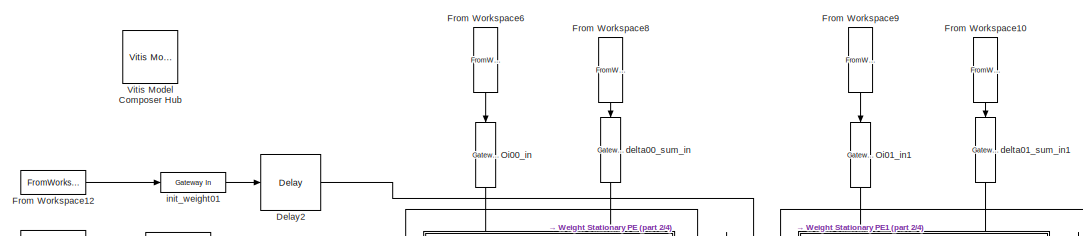
[diagram: root canvas - part 1/4, top left region]
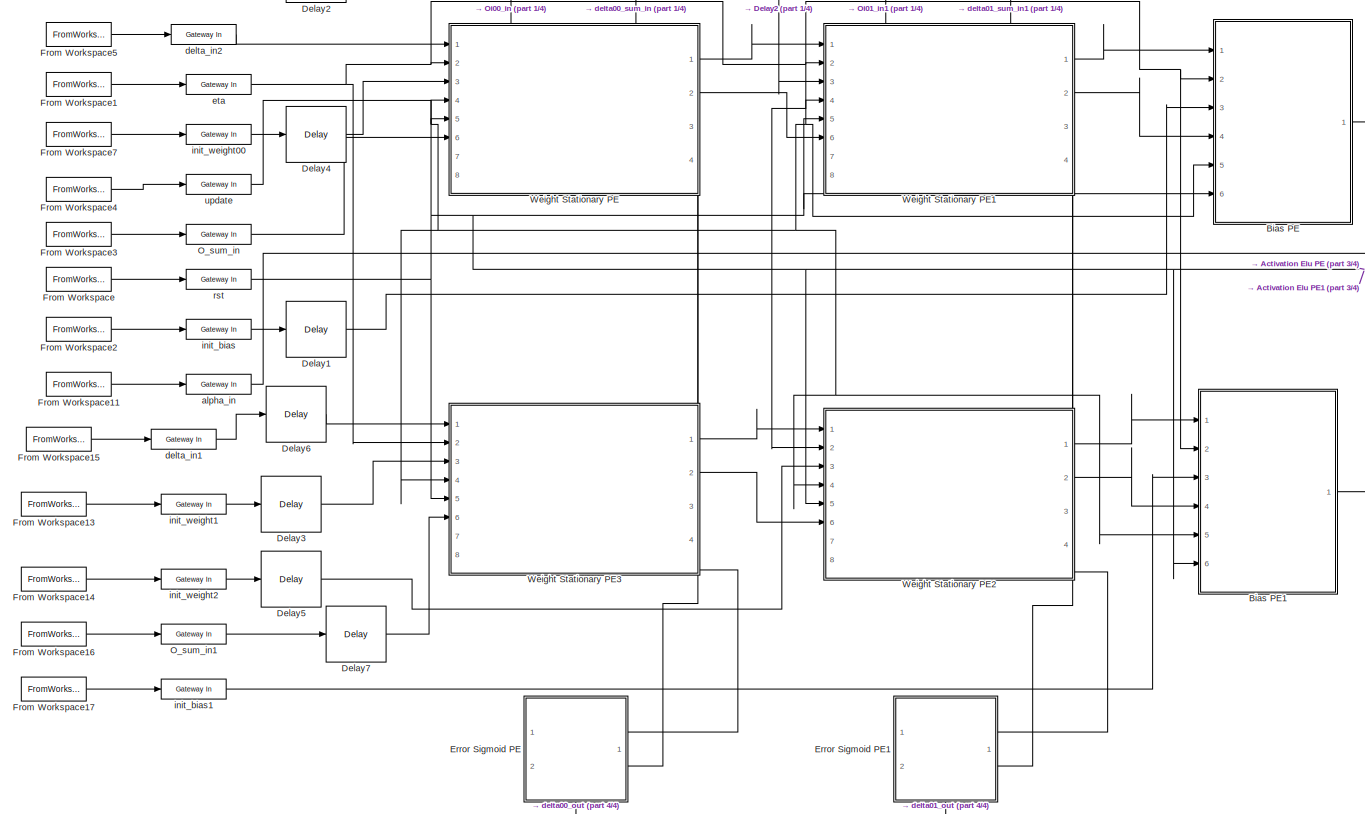
[diagram: root canvas - part 2/4, central region]
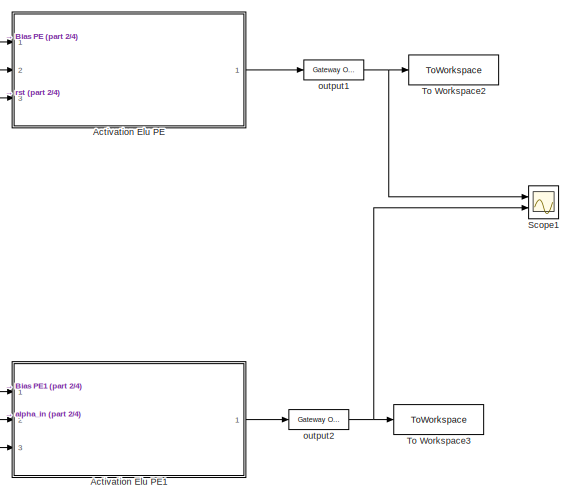
[diagram: root canvas - part 3/4, middle right region]
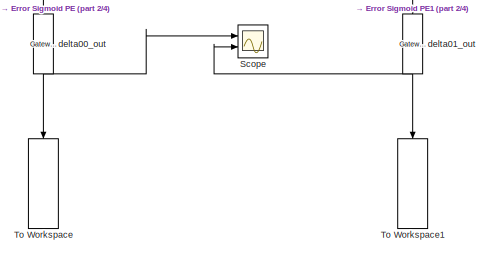
[diagram: root canvas - part 4/4, bottom center region]
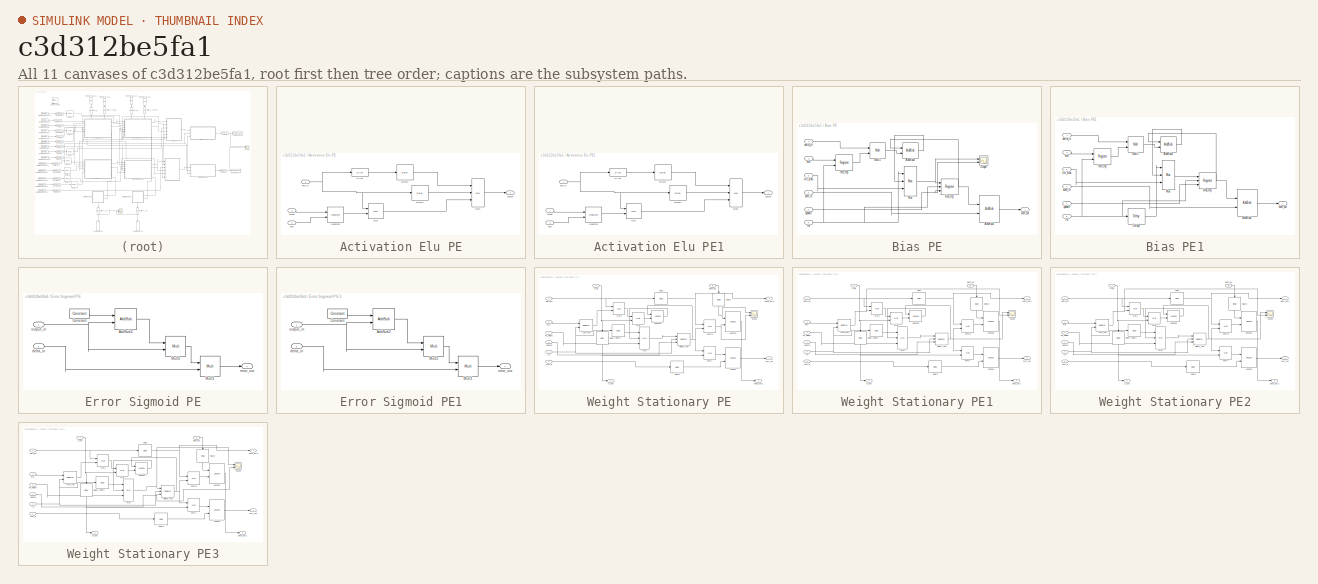
[diagram: thumbnail index - all 11 canvases of the model, root first then tree order]
MODEL slx_c3d312be5fa1
KIND model
CONFIG AbsTol = auto
CONFIG EnableMultiTasking = off
CONFIG FixedStep = auto
CONFIG MaxStep = auto
CONFIG MinStep = auto
CONFIG RelTol = 1e-3
CONFIG SampleTimeConstraint = Unconstrained
CONFIG SolverName = VariableStepAuto
CONFIG StartTime = 0.0
CONFIG StopTime = 15
BLOCK [SubSystem] Activation Elu PE
  Ports = [3, 1]
  RequestExecContextInheritance = off
BLOCK [Reference] Activation Elu PE/Delay1  REF=hdlBasic/Delay
  Ports = [1, 1]
  SourceBlock = hdlBasic/Delay
  SourceType = Delay Block
BLOCK [Reference] Activation Elu PE/Delay4  REF=hdlBasic/Delay
  Ports = [1, 1]
  SourceBlock = hdlBasic/Delay
  SourceType = Delay Block
BLOCK [Reference] Activation Elu PE/Mult  REF=hdlBasic/Mult
  Ports = [2, 1]
  SourceBlock = hdlBasic/Mult
  SourceType = Multiplier Block
BLOCK [Reference] Activation Elu PE/Mux1  REF=hdlBasic/Mux
  Ports = [3, 1]
  SourceBlock = hdlBasic/Mux
  SourceType = Bus Multiplexer Block
BLOCK [Reference] Activation Elu PE/Register  REF=hdlBasic/Register
  Ports = [2, 1]
  SourceBlock = hdlBasic/Register
  SourceType = Register Block
BLOCK [Reference] Activation Elu PE/Slice  REF=hdlBasic/Slice
  Ports = [1, 1]
  SourceBlock = hdlBasic/Slice
  SourceType = Bit Slice Extractor Block
BLOCK [Inport] Activation Elu PE/alpha
  Port = 2
BLOCK [Inport] Activation Elu PE/enb
  Port = 3
BLOCK [Inport] Activation Elu PE/net_in
BLOCK [Outport] Activation Elu PE/output
BLOCK [SubSystem] Activation Elu PE1
  Ports = [3, 1]
  RequestExecContextInheritance = off
BLOCK [Reference] Activation Elu PE1/Delay1  REF=hdlBasic/Delay
  Ports = [1, 1]
  SourceBlock = hdlBasic/Delay
  SourceType = Delay Block
BLOCK [Reference] Activation Elu PE1/Delay4  REF=hdlBasic/Delay
  Ports = [1, 1]
  SourceBlock = hdlBasic/Delay
  SourceType = Delay Block
BLOCK [Reference] Activation Elu PE1/Mult  REF=hdlBasic/Mult
  Ports = [2, 1]
  SourceBlock = hdlBasic/Mult
  SourceType = Multiplier Block
BLOCK [Reference] Activation Elu PE1/Mux1  REF=hdlBasic/Mux
  Ports = [3, 1]
  SourceBlock = hdlBasic/Mux
  SourceType = Bus Multiplexer Block
BLOCK [Reference] Activation Elu PE1/Register  REF=hdlBasic/Register
  Ports = [2, 1]
  SourceBlock = hdlBasic/Register
  SourceType = Register Block
BLOCK [Reference] Activation Elu PE1/Slice  REF=hdlBasic/Slice
  Ports = [1, 1]
  SourceBlock = hdlBasic/Slice
  SourceType = Bit Slice Extractor Block
BLOCK [Inport] Activation Elu PE1/alpha
  Port = 2
BLOCK [Inport] Activation Elu PE1/enb
  Port = 3
BLOCK [Inport] Activation Elu PE1/net_in
BLOCK [Outport] Activation Elu PE1/output
BLOCK [SubSystem] Bias PE
  Ports = [6, 1]
  RequestExecContextInheritance = off
BLOCK [Reference] Bias PE/AddSub1  REF=hdlBasic/AddSub
  Ports = [2, 1]
  SourceBlock = hdlBasic/AddSub
  SourceType = Adder/Subtracter Block
BLOCK [Reference] Bias PE/AddSub2  REF=hdlBasic/AddSub
  Ports = [2, 1]
  SourceBlock = hdlBasic/AddSub
  SourceType = Adder/Subtracter Block
BLOCK [Reference] Bias PE/Mult1  REF=hdlBasic/Mult
  Ports = [2, 1]
  SourceBlock = hdlBasic/Mult
  SourceType = Multiplier Block
BLOCK [Reference] Bias PE/Mux  REF=hdlBasic/Mux
  Ports = [3, 1]
  SourceBlock = hdlBasic/Mux
  SourceType = Bus Multiplexer Block
BLOCK [Scope] Bias PE/Scope
  Floating = off
  NumInputPorts = 2
  Ports = [2]
  ScopeSpecificationString = Simulink.scopes.TimeScopeBlockCfg('CurrentConfiguration', extmgr.ConfigurationSet(extmgr.Configuration('Core','General UI',true),extmgr.Configuration('Core','Source UI',true),extmgr.Configuration('Sources','WiredSimulink',true,'DataLoggingVariableName','ScopeData3'),extmgr.Configuration('Visuals','Time Domain',true,'SerializedDisplays',{struct('MinYLimReal','-1.6875','MaxYLimReal','0.1875','YLabel...<+2051ch>
BLOCK [Reference] Bias PE/bias_reg  REF=hdlBasic/Register
  Ports = [3, 1]
  SourceBlock = hdlBasic/Register
  SourceType = Register Block
BLOCK [Inport] Bias PE/delta_in
BLOCK [Inport] Bias PE/eta
  Port = 2
BLOCK [Inport] Bias PE/init_bias
  Port = 3
BLOCK [Reference] Bias PE/rate_reg  REF=hdlBasic/Register
  Ports = [2, 1]
  SourceBlock = hdlBasic/Register
  SourceType = Register Block
BLOCK [Inport] Bias PE/rst
  Port = 6
BLOCK [Inport] Bias PE/sum_in
  Port = 4
BLOCK [Outport] Bias PE/sum_out
BLOCK [Inport] Bias PE/update
  Port = 5
BLOCK [SubSystem] Bias PE1
  Ports = [6, 1]
  RequestExecContextInheritance = off
BLOCK [Reference] Bias PE1/AddSub1  REF=hdlBasic/AddSub
  Ports = [2, 1]
  SourceBlock = hdlBasic/AddSub
  SourceType = Adder/Subtracter Block
BLOCK [Reference] Bias PE1/AddSub2  REF=hdlBasic/AddSub
  Ports = [2, 1]
  SourceBlock = hdlBasic/AddSub
  SourceType = Adder/Subtracter Block
BLOCK [Reference] Bias PE1/Delay4  REF=hdlBasic/Delay
  Ports = [1, 1]
  SourceBlock = hdlBasic/Delay
  SourceType = Delay Block
BLOCK [Reference] Bias PE1/Mult1  REF=hdlBasic/Mult
  Ports = [2, 1]
  SourceBlock = hdlBasic/Mult
  SourceType = Multiplier Block
BLOCK [Reference] Bias PE1/Mux  REF=hdlBasic/Mux
  Ports = [3, 1]
  SourceBlock = hdlBasic/Mux
  SourceType = Bus Multiplexer Block
BLOCK [Reference] Bias PE1/bias_reg  REF=hdlBasic/Register
  Ports = [3, 1]
  SourceBlock = hdlBasic/Register
  SourceType = Register Block
BLOCK [Inport] Bias PE1/delta_in
BLOCK [Inport] Bias PE1/eta
  Port = 2
BLOCK [Inport] Bias PE1/init_bias
  Port = 3
BLOCK [Reference] Bias PE1/rate_reg  REF=hdlBasic/Register
  Ports = [2, 1]
  SourceBlock = hdlBasic/Register
  SourceType = Register Block
BLOCK [Inport] Bias PE1/rst
  Port = 6
BLOCK [Inport] Bias PE1/sum_in
  Port = 4
BLOCK [Outport] Bias PE1/sum_out
BLOCK [Inport] Bias PE1/update
  Port = 5
BLOCK [Reference] Delay1  REF=hdlBasic/Delay
  Ports = [1, 1]
  SourceBlock = hdlBasic/Delay
  SourceType = Delay Block
BLOCK [Reference] Delay2  REF=hdlBasic/Delay
  Ports = [1, 1]
  SourceBlock = hdlBasic/Delay
  SourceType = Delay Block
BLOCK [Reference] Delay3  REF=hdlBasic/Delay
  Ports = [1, 1]
  SourceBlock = hdlBasic/Delay
  SourceType = Delay Block
BLOCK [Reference] Delay4  REF=hdlBasic/Delay
  Ports = [1, 1]
  SourceBlock = hdlBasic/Delay
  SourceType = Delay Block
BLOCK [Reference] Delay5  REF=hdlBasic/Delay
  Ports = [1, 1]
  SourceBlock = hdlBasic/Delay
  SourceType = Delay Block
BLOCK [Reference] Delay6  REF=hdlBasic/Delay
  Ports = [1, 1]
  SourceBlock = hdlBasic/Delay
  SourceType = Delay Block
BLOCK [Reference] Delay7  REF=hdlBasic/Delay
  Ports = [1, 1]
  SourceBlock = hdlBasic/Delay
  SourceType = Delay Block
BLOCK [SubSystem] Error Sigmoid PE
  PortSchema = {"entries":[{"content":{"sides":[{"content":{"connectorIds":[]},"type":"ConnectorPlacement.EquallySpacedRectSide","uuid":"4b4c7bc9-3645-4c76-a1de-5ab676f1a9ac"},{"content":{"connectorIds":[],"side":"RIGHT"},"type":"ConnectorPlacement.EquallySpacedRectSide","uuid":"d1be90c1-a42c-4064-b554-aa0c88bdcf76"},{"content":{"connectorIds":["In1","In2"],"side":"TOP"},"type":"ConnectorPlacement.EquallySpacedR...<+390ch>
  Ports = [2, 1]
  RequestExecContextInheritance = off
BLOCK [Reference] Error Sigmoid PE/AddSub2  REF=hdlBasic/AddSub
  Ports = [2, 1]
  SourceBlock = hdlBasic/AddSub
  SourceType = Adder/Subtracter Block
BLOCK [Reference] Error Sigmoid PE/Constant  REF=hdlBasic/Constant
  Ports = [0, 1]
  SourceBlock = hdlBasic/Constant
  SourceType = Constant Block Block
BLOCK [Reference] Error Sigmoid PE/Mult1  REF=hdlBasic/Mult
  Ports = [2, 1]
  SourceBlock = hdlBasic/Mult
  SourceType = Multiplier Block
BLOCK [Reference] Error Sigmoid PE/Mult2  REF=hdlBasic/Mult
  Ports = [2, 1]
  SourceBlock = hdlBasic/Mult
  SourceType = Multiplier Block
BLOCK [Inport] Error Sigmoid PE/delta_in
  Port = 2
BLOCK [Outport] Error Sigmoid PE/error_out
BLOCK [Inport] Error Sigmoid PE/output_in
BLOCK [SubSystem] Error Sigmoid PE1
  PortSchema = {"entries":[{"content":{"sides":[{"content":{"connectorIds":[]},"type":"ConnectorPlacement.EquallySpacedRectSide","uuid":"4b4c7bc9-3645-4c76-a1de-5ab676f1a9ac"},{"content":{"connectorIds":[],"side":"RIGHT"},"type":"ConnectorPlacement.EquallySpacedRectSide","uuid":"d1be90c1-a42c-4064-b554-aa0c88bdcf76"},{"content":{"connectorIds":["In1","In2"],"side":"TOP"},"type":"ConnectorPlacement.EquallySpacedR...<+390ch>
  Ports = [2, 1]
  RequestExecContextInheritance = off
BLOCK [Reference] Error Sigmoid PE1/AddSub2  REF=hdlBasic/AddSub
  Ports = [2, 1]
  SourceBlock = hdlBasic/AddSub
  SourceType = Adder/Subtracter Block
BLOCK [Reference] Error Sigmoid PE1/Constant  REF=hdlBasic/Constant
  Ports = [0, 1]
  SourceBlock = hdlBasic/Constant
  SourceType = Constant Block Block
BLOCK [Reference] Error Sigmoid PE1/Mult1  REF=hdlBasic/Mult
  Ports = [2, 1]
  SourceBlock = hdlBasic/Mult
  SourceType = Multiplier Block
BLOCK [Reference] Error Sigmoid PE1/Mult2  REF=hdlBasic/Mult
  Ports = [2, 1]
  SourceBlock = hdlBasic/Mult
  SourceType = Multiplier Block
BLOCK [Inport] Error Sigmoid PE1/delta_in
  Port = 2
BLOCK [Outport] Error Sigmoid PE1/error_out
BLOCK [Inport] Error Sigmoid PE1/output_in
BLOCK [FromWorkspace] From Workspace
  VariableName = rst
BLOCK [FromWorkspace] From Workspace1
  VariableName = eta
BLOCK [FromWorkspace] From Workspace10
  NameLocation = left
  VariableName = delta01
BLOCK [FromWorkspace] From Workspace11
  VariableName = alpha
BLOCK [FromWorkspace] From Workspace12
  VariableName = init_weight01
BLOCK [FromWorkspace] From Workspace13
  VariableName = init_weight10
BLOCK [FromWorkspace] From Workspace14
  VariableName = init_weight11
BLOCK [FromWorkspace] From Workspace15
  VariableName = delta2_1
BLOCK [FromWorkspace] From Workspace16
  VariableName = o_sum1
BLOCK [FromWorkspace] From Workspace17
  VariableName = init_bias_1
BLOCK [FromWorkspace] From Workspace2
  VariableName = init_bias_0
BLOCK [FromWorkspace] From Workspace3
  VariableName = o_sum0
BLOCK [FromWorkspace] From Workspace4
  VariableName = update
BLOCK [FromWorkspace] From Workspace5
  VariableName = delta2_0
BLOCK [FromWorkspace] From Workspace6
  NameLocation = left
  VariableName = oi00
BLOCK [FromWorkspace] From Workspace7
  VariableName = init_weight00
BLOCK [FromWorkspace] From Workspace8
  NameLocation = left
  VariableName = delta00
BLOCK [FromWorkspace] From Workspace9
  NameLocation = left
  VariableName = oi01
BLOCK [Reference] O_sum_in  REF=hdlBasic/Gateway In
  Ports = [1, 1]
  SourceBlock = hdlBasic/Gateway In
  SourceType = Gateway In Block
BLOCK [Reference] O_sum_in1  REF=hdlBasic/Gateway In
  Ports = [1, 1]
  SourceBlock = hdlBasic/Gateway In
  SourceType = Gateway In Block
BLOCK [Reference] Oi00_in  REF=hdlBasic/Gateway In
  NameLocation = left
  Ports = [1, 1]
  SourceBlock = hdlBasic/Gateway In
  SourceType = Gateway In Block
BLOCK [Reference] Oi01_in1  REF=hdlBasic/Gateway In
  NameLocation = left
  Ports = [1, 1]
  SourceBlock = hdlBasic/Gateway In
  SourceType = Gateway In Block
BLOCK [Scope] Scope
  Floating = off
  NumInputPorts = 2
  Ports = [2]
  ScopeSpecificationString = Simulink.scopes.TimeScopeBlockCfg('CurrentConfiguration', extmgr.ConfigurationSet(extmgr.Configuration('Core','General UI',true),extmgr.Configuration('Core','Source UI',true),extmgr.Configuration('Sources','WiredSimulink',true,'DataLoggingVariableName','ScopeData1'),extmgr.Configuration('Visuals','Time Domain',true,'SerializedDisplays',{struct('MinYLimReal','-3.375','MaxYLimReal','0.375','YLabelRe...<+2021ch>
BLOCK [Scope] Scope1
  Floating = off
  NumInputPorts = 2
  Ports = [2]
  ScopeSpecificationString = Simulink.scopes.TimeScopeBlockCfg('CurrentConfiguration', extmgr.ConfigurationSet(extmgr.Configuration('Core','General UI',true),extmgr.Configuration('Core','Source UI',true),extmgr.Configuration('Sources','WiredSimulink',true,'DataLoggingVariableName','ScopeData2'),extmgr.Configuration('Visuals','Time Domain',true,'SerializedDisplays',{struct('MinYLimReal','-0.25','MaxYLimReal','2.25','YLabelReal...<+2009ch>
BLOCK [ToWorkspace] To Workspace
  FixptAsFi = on
  MaxDataPoints = inf
  NameLocation = left
  Ports = [1]
  SampleTime = -1
  SaveFormat = Timeseries
  VariableName = delta00
BLOCK [ToWorkspace] To Workspace1
  FixptAsFi = on
  MaxDataPoints = inf
  NameLocation = left
  Ports = [1]
  SampleTime = -1
  SaveFormat = Timeseries
  VariableName = delta01
BLOCK [ToWorkspace] To Workspace2
  FixptAsFi = on
  MaxDataPoints = inf
  Ports = [1]
  SampleTime = -1
  SaveFormat = Timeseries
  VariableName = output1
BLOCK [ToWorkspace] To Workspace3
  FixptAsFi = on
  MaxDataPoints = inf
  Ports = [1]
  SampleTime = -1
  SaveFormat = Timeseries
  VariableName = output2
BLOCK [Reference] Vitis Model Composer Hub  REF=vmcUtilities/Vitis Model Composer Hub
  Ports = []
  SourceBlock = vmcUtilities/Vitis Model Composer Hub
  SourceType = VMC Hub
  Tag = genX
  UserDataPersistent = on
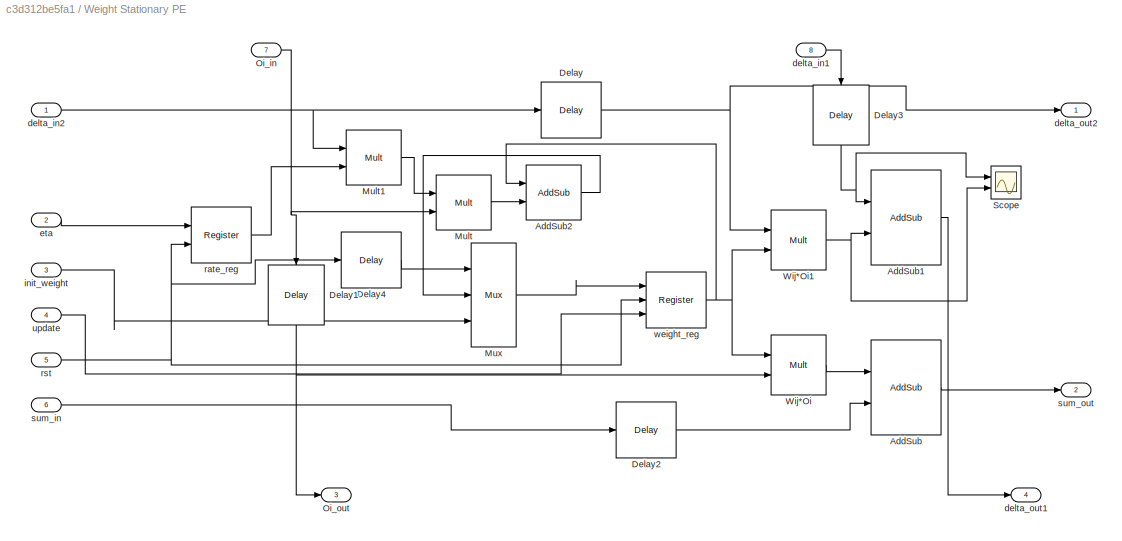
BLOCK [SubSystem] Weight Stationary PE
  PortSchema = {"entries":[{"content":{"sides":[{"content":{"connectorIds":["In1","In2","In3","In4","In5","In6"]},"type":"ConnectorPlacement.EquallySpacedRectSide","uuid":"632a3ded-5b94-406e-b0d8-119737680536"},{"content":{"connectorIds":["Out1","Out2"],"side":"RIGHT"},"type":"ConnectorPlacement.EquallySpacedRectSide","uuid":"c449027c-81bc-4843-8994-fcad26195520"},{"content":{"connectorIds":["In7","In8"],"side":...<+445ch>  <repeated x4 — deduplicated; at blocks: Weight Stationary PE, Weight Stationary PE1, Weight Stationary PE2, Weight Stationary PE3>
  Ports = [8, 4]
  RequestExecContextInheritance = off
BLOCK [Reference] Weight Stationary PE/AddSub  REF=hdlBasic/AddSub
  Ports = [2, 1]
  SourceBlock = hdlBasic/AddSub
  SourceType = Adder/Subtracter Block
BLOCK [Reference] Weight Stationary PE/AddSub1  REF=hdlBasic/AddSub
  Ports = [2, 1]
  SourceBlock = hdlBasic/AddSub
  SourceType = Adder/Subtracter Block
BLOCK [Reference] Weight Stationary PE/AddSub2  REF=hdlBasic/AddSub
  Ports = [2, 1]
  SourceBlock = hdlBasic/AddSub
  SourceType = Adder/Subtracter Block
BLOCK [Reference] Weight Stationary PE/Delay  REF=hdlBasic/Delay
  Ports = [1, 1]
  SourceBlock = hdlBasic/Delay
  SourceType = Delay Block
BLOCK [Reference] Weight Stationary PE/Delay1  REF=hdlBasic/Delay
  NameLocation = left
  Ports = [1, 1]
  SourceBlock = hdlBasic/Delay
  SourceType = Delay Block
BLOCK [Reference] Weight Stationary PE/Delay2  REF=hdlBasic/Delay
  Ports = [1, 1]
  SourceBlock = hdlBasic/Delay
  SourceType = Delay Block
BLOCK [Reference] Weight Stationary PE/Delay3  REF=hdlBasic/Delay
  NameLocation = left
  Ports = [1, 1]
  SourceBlock = hdlBasic/Delay
  SourceType = Delay Block
BLOCK [Reference] Weight Stationary PE/Delay4  REF=hdlBasic/Delay
  Ports = [1, 1]
  SourceBlock = hdlBasic/Delay
  SourceType = Delay Block
BLOCK [Reference] Weight Stationary PE/Mult  REF=hdlBasic/Mult
  Ports = [2, 1]
  SourceBlock = hdlBasic/Mult
  SourceType = Multiplier Block
BLOCK [Reference] Weight Stationary PE/Mult1  REF=hdlBasic/Mult
  Ports = [2, 1]
  SourceBlock = hdlBasic/Mult
  SourceType = Multiplier Block
BLOCK [Reference] Weight Stationary PE/Mux  REF=hdlBasic/Mux
  Ports = [3, 1]
  SourceBlock = hdlBasic/Mux
  SourceType = Bus Multiplexer Block
BLOCK [Inport] Weight Stationary PE/Oi_in
  Port = 7
BLOCK [Outport] Weight Stationary PE/Oi_out
  Port = 3
BLOCK [Scope] Weight Stationary PE/Scope
  Floating = off
  NumInputPorts = 2
  Ports = [2]
  ScopeSpecificationString = Simulink.scopes.TimeScopeBlockCfg('CurrentConfiguration', extmgr.ConfigurationSet(extmgr.Configuration('Core','General UI',true),extmgr.Configuration('Core','Source UI',true),extmgr.Configuration('Sources','WiredSimulink',true),extmgr.Configuration('Visuals','Time Domain',true,'SerializedDisplays',{struct('MinYLimReal','-0.03125','MaxYLimReal','0.28125','YLabelReal','','MinYLimMag','0.00000','MaxY...<+2026ch>
BLOCK [Reference] Weight Stationary PE/Wij*Oi  REF=hdlBasic/Mult
  Ports = [2, 1]
  SourceBlock = hdlBasic/Mult
  SourceType = Multiplier Block
BLOCK [Reference] Weight Stationary PE/Wij*Oi1  REF=hdlBasic/Mult
  Ports = [2, 1]
  SourceBlock = hdlBasic/Mult
  SourceType = Multiplier Block
BLOCK [Inport] Weight Stationary PE/delta_in1
  Port = 8
BLOCK [Inport] Weight Stationary PE/delta_in2
BLOCK [Outport] Weight Stationary PE/delta_out1
  Port = 4
BLOCK [Outport] Weight Stationary PE/delta_out2
BLOCK [Inport] Weight Stationary PE/eta
  Port = 2
BLOCK [Inport] Weight Stationary PE/init_weight
  Port = 3
BLOCK [Reference] Weight Stationary PE/rate_reg  REF=hdlBasic/Register
  Ports = [2, 1]
  SourceBlock = hdlBasic/Register
  SourceType = Register Block
BLOCK [Inport] Weight Stationary PE/rst
  Port = 5
BLOCK [Inport] Weight Stationary PE/sum_in
  Port = 6
BLOCK [Outport] Weight Stationary PE/sum_out
  Port = 2
BLOCK [Inport] Weight Stationary PE/update
  Port = 4
BLOCK [Reference] Weight Stationary PE/weight_reg  REF=hdlBasic/Register
  Ports = [3, 1]
  SourceBlock = hdlBasic/Register
  SourceType = Register Block
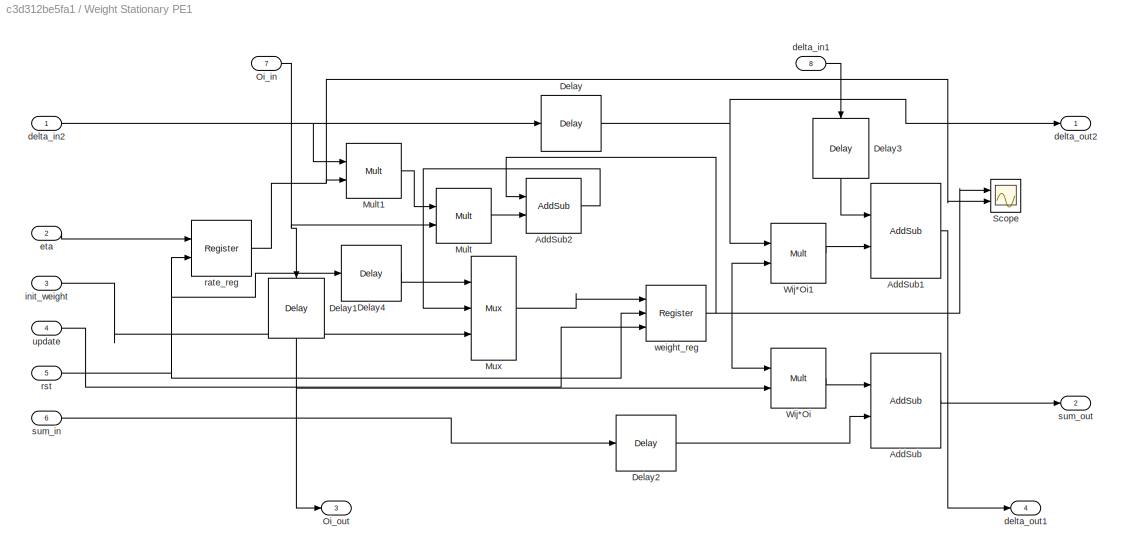
BLOCK [SubSystem] Weight Stationary PE1
  Ports = [8, 4]
  RequestExecContextInheritance = off
BLOCK [Reference] Weight Stationary PE1/AddSub  REF=hdlBasic/AddSub
  Ports = [2, 1]
  SourceBlock = hdlBasic/AddSub
  SourceType = Adder/Subtracter Block
BLOCK [Reference] Weight Stationary PE1/AddSub1  REF=hdlBasic/AddSub
  Ports = [2, 1]
  SourceBlock = hdlBasic/AddSub
  SourceType = Adder/Subtracter Block
BLOCK [Reference] Weight Stationary PE1/AddSub2  REF=hdlBasic/AddSub
  Ports = [2, 1]
  SourceBlock = hdlBasic/AddSub
  SourceType = Adder/Subtracter Block
BLOCK [Reference] Weight Stationary PE1/Delay  REF=hdlBasic/Delay
  Ports = [1, 1]
  SourceBlock = hdlBasic/Delay
  SourceType = Delay Block
BLOCK [Reference] Weight Stationary PE1/Delay1  REF=hdlBasic/Delay
  NameLocation = left
  Ports = [1, 1]
  SourceBlock = hdlBasic/Delay
  SourceType = Delay Block
BLOCK [Reference] Weight Stationary PE1/Delay2  REF=hdlBasic/Delay
  Ports = [1, 1]
  SourceBlock = hdlBasic/Delay
  SourceType = Delay Block
BLOCK [Reference] Weight Stationary PE1/Delay3  REF=hdlBasic/Delay
  NameLocation = left
  Ports = [1, 1]
  SourceBlock = hdlBasic/Delay
  SourceType = Delay Block
BLOCK [Reference] Weight Stationary PE1/Delay4  REF=hdlBasic/Delay
  Ports = [1, 1]
  SourceBlock = hdlBasic/Delay
  SourceType = Delay Block
BLOCK [Reference] Weight Stationary PE1/Mult  REF=hdlBasic/Mult
  Ports = [2, 1]
  SourceBlock = hdlBasic/Mult
  SourceType = Multiplier Block
BLOCK [Reference] Weight Stationary PE1/Mult1  REF=hdlBasic/Mult
  Ports = [2, 1]
  SourceBlock = hdlBasic/Mult
  SourceType = Multiplier Block
BLOCK [Reference] Weight Stationary PE1/Mux  REF=hdlBasic/Mux
  Ports = [3, 1]
  SourceBlock = hdlBasic/Mux
  SourceType = Bus Multiplexer Block
BLOCK [Inport] Weight Stationary PE1/Oi_in
  Port = 7
BLOCK [Outport] Weight Stationary PE1/Oi_out
  Port = 3
BLOCK [Scope] Weight Stationary PE1/Scope
  Floating = off
  NumInputPorts = 2
  Ports = [2]
  ScopeSpecificationString = Simulink.scopes.TimeScopeBlockCfg('CurrentConfiguration', extmgr.ConfigurationSet(extmgr.Configuration('Core','General UI',true),extmgr.Configuration('Core','Source UI',true),extmgr.Configuration('Sources','WiredSimulink',true),extmgr.Configuration('Visuals','Time Domain',true,'SerializedDisplays',{struct('MinYLimReal','-0.0625','MaxYLimReal','0.5625','YLabelReal','','MinYLimMag','0.00000','MaxYLi...<+2026ch>
BLOCK [Reference] Weight Stationary PE1/Wij*Oi  REF=hdlBasic/Mult
  Ports = [2, 1]
  SourceBlock = hdlBasic/Mult
  SourceType = Multiplier Block
BLOCK [Reference] Weight Stationary PE1/Wij*Oi1  REF=hdlBasic/Mult
  Ports = [2, 1]
  SourceBlock = hdlBasic/Mult
  SourceType = Multiplier Block
BLOCK [Inport] Weight Stationary PE1/delta_in1
  Port = 8
BLOCK [Inport] Weight Stationary PE1/delta_in2
BLOCK [Outport] Weight Stationary PE1/delta_out1
  Port = 4
BLOCK [Outport] Weight Stationary PE1/delta_out2
BLOCK [Inport] Weight Stationary PE1/eta
  Port = 2
BLOCK [Inport] Weight Stationary PE1/init_weight
  Port = 3
BLOCK [Reference] Weight Stationary PE1/rate_reg  REF=hdlBasic/Register
  Ports = [2, 1]
  SourceBlock = hdlBasic/Register
  SourceType = Register Block
BLOCK [Inport] Weight Stationary PE1/rst
  Port = 5
BLOCK [Inport] Weight Stationary PE1/sum_in
  Port = 6
BLOCK [Outport] Weight Stationary PE1/sum_out
  Port = 2
BLOCK [Inport] Weight Stationary PE1/update
  Port = 4
BLOCK [Reference] Weight Stationary PE1/weight_reg  REF=hdlBasic/Register
  Ports = [3, 1]
  SourceBlock = hdlBasic/Register
  SourceType = Register Block
BLOCK [SubSystem] Weight Stationary PE2
  Ports = [8, 4]
  RequestExecContextInheritance = off
BLOCK [Reference] Weight Stationary PE2/AddSub  REF=hdlBasic/AddSub
  Ports = [2, 1]
  SourceBlock = hdlBasic/AddSub
  SourceType = Adder/Subtracter Block
BLOCK [Reference] Weight Stationary PE2/AddSub1  REF=hdlBasic/AddSub
  Ports = [2, 1]
  SourceBlock = hdlBasic/AddSub
  SourceType = Adder/Subtracter Block
BLOCK [Reference] Weight Stationary PE2/AddSub2  REF=hdlBasic/AddSub
  Ports = [2, 1]
  SourceBlock = hdlBasic/AddSub
  SourceType = Adder/Subtracter Block
BLOCK [Reference] Weight Stationary PE2/Delay  REF=hdlBasic/Delay
  Ports = [1, 1]
  SourceBlock = hdlBasic/Delay
  SourceType = Delay Block
BLOCK [Reference] Weight Stationary PE2/Delay1  REF=hdlBasic/Delay
  NameLocation = left
  Ports = [1, 1]
  SourceBlock = hdlBasic/Delay
  SourceType = Delay Block
BLOCK [Reference] Weight Stationary PE2/Delay2  REF=hdlBasic/Delay
  Ports = [1, 1]
  SourceBlock = hdlBasic/Delay
  SourceType = Delay Block
BLOCK [Reference] Weight Stationary PE2/Delay3  REF=hdlBasic/Delay
  NameLocation = left
  Ports = [1, 1]
  SourceBlock = hdlBasic/Delay
  SourceType = Delay Block
BLOCK [Reference] Weight Stationary PE2/Delay4  REF=hdlBasic/Delay
  Ports = [1, 1]
  SourceBlock = hdlBasic/Delay
  SourceType = Delay Block
BLOCK [Reference] Weight Stationary PE2/Mult  REF=hdlBasic/Mult
  Ports = [2, 1]
  SourceBlock = hdlBasic/Mult
  SourceType = Multiplier Block
BLOCK [Reference] Weight Stationary PE2/Mult1  REF=hdlBasic/Mult
  Ports = [2, 1]
  SourceBlock = hdlBasic/Mult
  SourceType = Multiplier Block
BLOCK [Reference] Weight Stationary PE2/Mux  REF=hdlBasic/Mux
  Ports = [3, 1]
  SourceBlock = hdlBasic/Mux
  SourceType = Bus Multiplexer Block
BLOCK [Inport] Weight Stationary PE2/Oi_in
  Port = 7
BLOCK [Outport] Weight Stationary PE2/Oi_out
  Port = 3
BLOCK [Scope] Weight Stationary PE2/Scope
  Floating = off
  NumInputPorts = 2
  Ports = [2]
  ScopeSpecificationString = Simulink.scopes.TimeScopeBlockCfg('CurrentConfiguration', extmgr.ConfigurationSet(extmgr.Configuration('Core','General UI',true),extmgr.Configuration('Core','Source UI',true),extmgr.Configuration('Sources','WiredSimulink',true),extmgr.Configuration('Visuals','Time Domain',true,'SerializedDisplays',{struct('MinYLimReal','-10.25','MaxYLimReal','2.25','YLabelReal','','MinYLimMag','0.00000','MaxYLimMa...<+2019ch>
BLOCK [Reference] Weight Stationary PE2/Wij*Oi  REF=hdlBasic/Mult
  Ports = [2, 1]
  SourceBlock = hdlBasic/Mult
  SourceType = Multiplier Block
BLOCK [Reference] Weight Stationary PE2/Wij*Oi1  REF=hdlBasic/Mult
  Ports = [2, 1]
  SourceBlock = hdlBasic/Mult
  SourceType = Multiplier Block
BLOCK [Inport] Weight Stationary PE2/delta_in1
  Port = 8
BLOCK [Inport] Weight Stationary PE2/delta_in2
BLOCK [Outport] Weight Stationary PE2/delta_out1
  Port = 4
BLOCK [Outport] Weight Stationary PE2/delta_out2
BLOCK [Inport] Weight Stationary PE2/eta
  Port = 2
BLOCK [Inport] Weight Stationary PE2/init_weight
  Port = 3
BLOCK [Reference] Weight Stationary PE2/rate_reg  REF=hdlBasic/Register
  Ports = [2, 1]
  SourceBlock = hdlBasic/Register
  SourceType = Register Block
BLOCK [Inport] Weight Stationary PE2/rst
  Port = 5
BLOCK [Inport] Weight Stationary PE2/sum_in
  Port = 6
BLOCK [Outport] Weight Stationary PE2/sum_out
  Port = 2
BLOCK [Inport] Weight Stationary PE2/update
  Port = 4
BLOCK [Reference] Weight Stationary PE2/weight_reg  REF=hdlBasic/Register
  Ports = [3, 1]
  SourceBlock = hdlBasic/Register
  SourceType = Register Block
BLOCK [SubSystem] Weight Stationary PE3
  Ports = [8, 4]
  RequestExecContextInheritance = off
BLOCK [Reference] Weight Stationary PE3/AddSub  REF=hdlBasic/AddSub
  Ports = [2, 1]
  SourceBlock = hdlBasic/AddSub
  SourceType = Adder/Subtracter Block
BLOCK [Reference] Weight Stationary PE3/AddSub1  REF=hdlBasic/AddSub
  Ports = [2, 1]
  SourceBlock = hdlBasic/AddSub
  SourceType = Adder/Subtracter Block
BLOCK [Reference] Weight Stationary PE3/AddSub2  REF=hdlBasic/AddSub
  Ports = [2, 1]
  SourceBlock = hdlBasic/AddSub
  SourceType = Adder/Subtracter Block
BLOCK [Reference] Weight Stationary PE3/Delay  REF=hdlBasic/Delay
  Ports = [1, 1]
  SourceBlock = hdlBasic/Delay
  SourceType = Delay Block
BLOCK [Reference] Weight Stationary PE3/Delay1  REF=hdlBasic/Delay
  NameLocation = left
  Ports = [1, 1]
  SourceBlock = hdlBasic/Delay
  SourceType = Delay Block
BLOCK [Reference] Weight Stationary PE3/Delay2  REF=hdlBasic/Delay
  Ports = [1, 1]
  SourceBlock = hdlBasic/Delay
  SourceType = Delay Block
BLOCK [Reference] Weight Stationary PE3/Delay3  REF=hdlBasic/Delay
  NameLocation = left
  Ports = [1, 1]
  SourceBlock = hdlBasic/Delay
  SourceType = Delay Block
BLOCK [Reference] Weight Stationary PE3/Delay4  REF=hdlBasic/Delay
  Ports = [1, 1]
  SourceBlock = hdlBasic/Delay
  SourceType = Delay Block
BLOCK [Reference] Weight Stationary PE3/Mult  REF=hdlBasic/Mult
  Ports = [2, 1]
  SourceBlock = hdlBasic/Mult
  SourceType = Multiplier Block
BLOCK [Reference] Weight Stationary PE3/Mult1  REF=hdlBasic/Mult
  Ports = [2, 1]
  SourceBlock = hdlBasic/Mult
  SourceType = Multiplier Block
BLOCK [Reference] Weight Stationary PE3/Mux  REF=hdlBasic/Mux
  Ports = [3, 1]
  SourceBlock = hdlBasic/Mux
  SourceType = Bus Multiplexer Block
BLOCK [Inport] Weight Stationary PE3/Oi_in
  Port = 7
BLOCK [Outport] Weight Stationary PE3/Oi_out
  Port = 3
BLOCK [Scope] Weight Stationary PE3/Scope
  Floating = off
  NumInputPorts = 2
  Ports = [2]
  ScopeSpecificationString = Simulink.scopes.TimeScopeBlockCfg('CurrentConfiguration', extmgr.ConfigurationSet(extmgr.Configuration('Core','General UI',true),extmgr.Configuration('Core','Source UI',true),extmgr.Configuration('Sources','WiredSimulink',true),extmgr.Configuration('Visuals','Time Domain',true,'SerializedDisplays',{struct('MinYLimReal','-3.125','MaxYLimReal','0.625','YLabelReal','','MinYLimMag','0.00000','MaxYLimM...<+2011ch>
BLOCK [Reference] Weight Stationary PE3/Wij*Oi  REF=hdlBasic/Mult
  Ports = [2, 1]
  SourceBlock = hdlBasic/Mult
  SourceType = Multiplier Block
BLOCK [Reference] Weight Stationary PE3/Wij*Oi1  REF=hdlBasic/Mult
  Ports = [2, 1]
  SourceBlock = hdlBasic/Mult
  SourceType = Multiplier Block
BLOCK [Inport] Weight Stationary PE3/delta_in1
  Port = 8
BLOCK [Inport] Weight Stationary PE3/delta_in2
BLOCK [Outport] Weight Stationary PE3/delta_out1
  Port = 4
BLOCK [Outport] Weight Stationary PE3/delta_out2
BLOCK [Inport] Weight Stationary PE3/eta
  Port = 2
BLOCK [Inport] Weight Stationary PE3/init_weight
  Port = 3
BLOCK [Reference] Weight Stationary PE3/rate_reg  REF=hdlBasic/Register
  Ports = [2, 1]
  SourceBlock = hdlBasic/Register
  SourceType = Register Block
BLOCK [Inport] Weight Stationary PE3/rst
  Port = 5
BLOCK [Inport] Weight Stationary PE3/sum_in
  Port = 6
BLOCK [Outport] Weight Stationary PE3/sum_out
  Port = 2
BLOCK [Inport] Weight Stationary PE3/update
  Port = 4
BLOCK [Reference] Weight Stationary PE3/weight_reg  REF=hdlBasic/Register
  Ports = [3, 1]
  SourceBlock = hdlBasic/Register
  SourceType = Register Block
BLOCK [Reference] alpha_in  REF=hdlBasic/Gateway In
  Ports = [1, 1]
  SourceBlock = hdlBasic/Gateway In
  SourceType = Gateway In Block
BLOCK [Reference] delta00_out  REF=hdlBasic/Gateway Out
  NameLocation = left
  Ports = [1, 1]
  SourceBlock = hdlBasic/Gateway Out
  SourceType = Gateway Out Block
BLOCK [Reference] delta00_sum_in  REF=hdlBasic/Gateway In
  NameLocation = left
  Ports = [1, 1]
  SourceBlock = hdlBasic/Gateway In
  SourceType = Gateway In Block
BLOCK [Reference] delta01_out  REF=hdlBasic/Gateway Out
  NameLocation = left
  Ports = [1, 1]
  SourceBlock = hdlBasic/Gateway Out
  SourceType = Gateway Out Block
BLOCK [Reference] delta01_sum_in1  REF=hdlBasic/Gateway In
  NameLocation = left
  Ports = [1, 1]
  SourceBlock = hdlBasic/Gateway In
  SourceType = Gateway In Block
BLOCK [Reference] delta_in1  REF=hdlBasic/Gateway In
  Ports = [1, 1]
  SourceBlock = hdlBasic/Gateway In
  SourceType = Gateway In Block
BLOCK [Reference] delta_in2  REF=hdlBasic/Gateway In
  Ports = [1, 1]
  SourceBlock = hdlBasic/Gateway In
  SourceType = Gateway In Block
BLOCK [Reference] eta  REF=hdlBasic/Gateway In
  Ports = [1, 1]
  SourceBlock = hdlBasic/Gateway In
  SourceType = Gateway In Block
BLOCK [Reference] init_bias  REF=hdlBasic/Gateway In
  Ports = [1, 1]
  SourceBlock = hdlBasic/Gateway In
  SourceType = Gateway In Block
BLOCK [Reference] init_bias1  REF=hdlBasic/Gateway In
  Ports = [1, 1]
  SourceBlock = hdlBasic/Gateway In
  SourceType = Gateway In Block
BLOCK [Reference] init_weight00  REF=hdlBasic/Gateway In
  Ports = [1, 1]
  SourceBlock = hdlBasic/Gateway In
  SourceType = Gateway In Block
BLOCK [Reference] init_weight01  REF=hdlBasic/Gateway In
  Ports = [1, 1]
  SourceBlock = hdlBasic/Gateway In
  SourceType = Gateway In Block
BLOCK [Reference] init_weight1  REF=hdlBasic/Gateway In
  Ports = [1, 1]
  SourceBlock = hdlBasic/Gateway In
  SourceType = Gateway In Block
BLOCK [Reference] init_weight2  REF=hdlBasic/Gateway In
  Ports = [1, 1]
  SourceBlock = hdlBasic/Gateway In
  SourceType = Gateway In Block
BLOCK [Reference] output1  REF=hdlBasic/Gateway Out
  Ports = [1, 1]
  SourceBlock = hdlBasic/Gateway Out
  SourceType = Gateway Out Block
BLOCK [Reference] output2  REF=hdlBasic/Gateway Out
  Ports = [1, 1]
  SourceBlock = hdlBasic/Gateway Out
  SourceType = Gateway Out Block
BLOCK [Reference] rst  REF=hdlBasic/Gateway In
  Ports = [1, 1]
  SourceBlock = hdlBasic/Gateway In
  SourceType = Gateway In Block
BLOCK [Reference] update  REF=hdlBasic/Gateway In
  Ports = [1, 1]
  SourceBlock = hdlBasic/Gateway In
  SourceType = Gateway In Block
LINE Activation Elu PE/Delay1:1 -> Activation Elu PE/Mux1:1
LINE Activation Elu PE/Delay4:1 -> Activation Elu PE/Mux1:2
LINE Activation Elu PE/Mult:1 -> Activation Elu PE/Mux1:3
LINE Activation Elu PE/Mux1:1 -> Activation Elu PE/output:1
LINE Activation Elu PE/Register:1 -> Activation Elu PE/Mult:2
LINE Activation Elu PE/Slice:1 -> Activation Elu PE/Delay1:1
LINE Activation Elu PE/alpha:1 -> Activation Elu PE/Register:1
LINE Activation Elu PE/enb:1 -> Activation Elu PE/Register:2
NET Activation Elu PE/net_in:1 -> Activation Elu PE/Delay4:1, Activation Elu PE/Mult:1, Activation Elu PE/Slice:1
LINE Activation Elu PE1/Delay1:1 -> Activation Elu PE1/Mux1:1
LINE Activation Elu PE1/Delay4:1 -> Activation Elu PE1/Mux1:2
LINE Activation Elu PE1/Mult:1 -> Activation Elu PE1/Mux1:3
LINE Activation Elu PE1/Mux1:1 -> Activation Elu PE1/output:1
LINE Activation Elu PE1/Register:1 -> Activation Elu PE1/Mult:2
LINE Activation Elu PE1/Slice:1 -> Activation Elu PE1/Delay1:1
LINE Activation Elu PE1/alpha:1 -> Activation Elu PE1/Register:1
LINE Activation Elu PE1/enb:1 -> Activation Elu PE1/Register:2
NET Activation Elu PE1/net_in:1 -> Activation Elu PE1/Delay4:1, Activation Elu PE1/Mult:1, Activation Elu PE1/Slice:1
LINE Activation Elu PE1:1 -> output2:1
LINE Activation Elu PE:1 -> output1:1
LINE Bias PE/AddSub1:1 -> Bias PE/sum_out:1
LINE Bias PE/AddSub2:1 -> Bias PE/Mux:2
LINE Bias PE/Mult1:1 -> Bias PE/AddSub2:2
NET Bias PE/Mux:1 -> Bias PE/Scope:1, Bias PE/bias_reg:1
NET Bias PE/bias_reg:1 -> Bias PE/AddSub1:1, Bias PE/AddSub2:1
LINE Bias PE/delta_in:1 -> Bias PE/Mult1:1
LINE Bias PE/eta:1 -> Bias PE/rate_reg:1
LINE Bias PE/init_bias:1 -> Bias PE/Mux:3
LINE Bias PE/rate_reg:1 -> Bias PE/Mult1:2
NET Bias PE/rst:1 -> Bias PE/Mux:1, Bias PE/bias_reg:2, Bias PE/rate_reg:2
LINE Bias PE/sum_in:1 -> Bias PE/AddSub1:2
NET Bias PE/update:1 -> Bias PE/Scope:2, Bias PE/bias_reg:3
LINE Bias PE1/AddSub1:1 -> Bias PE1/sum_out:1
LINE Bias PE1/AddSub2:1 -> Bias PE1/Mux:2
LINE Bias PE1/Delay4:1 -> Bias PE1/Mux:1
LINE Bias PE1/Mult1:1 -> Bias PE1/AddSub2:2
LINE Bias PE1/Mux:1 -> Bias PE1/bias_reg:1
NET Bias PE1/bias_reg:1 -> Bias PE1/AddSub1:1, Bias PE1/AddSub2:1
LINE Bias PE1/delta_in:1 -> Bias PE1/Mult1:1
LINE Bias PE1/eta:1 -> Bias PE1/rate_reg:1
LINE Bias PE1/init_bias:1 -> Bias PE1/Mux:3
LINE Bias PE1/rate_reg:1 -> Bias PE1/Mult1:2
NET Bias PE1/rst:1 -> Bias PE1/Delay4:1, Bias PE1/bias_reg:2, Bias PE1/rate_reg:2
LINE Bias PE1/sum_in:1 -> Bias PE1/AddSub1:2
LINE Bias PE1/update:1 -> Bias PE1/bias_reg:3
LINE Bias PE1:1 -> Activation Elu PE1:1
LINE Bias PE:1 -> Activation Elu PE:1
LINE Delay1:1 -> Bias PE:3
LINE Delay2:1 -> Weight Stationary PE1:3
LINE Delay3:1 -> Weight Stationary PE3:3
LINE Delay4:1 -> Weight Stationary PE:3
LINE Delay5:1 -> Weight Stationary PE2:3
LINE Delay6:1 -> Weight Stationary PE3:1
LINE Delay7:1 -> Weight Stationary PE3:6
LINE Error Sigmoid PE/AddSub2:1 -> Error Sigmoid PE/Mult2:1
LINE Error Sigmoid PE/Constant:1 -> Error Sigmoid PE/AddSub2:1
LINE Error Sigmoid PE/Mult1:1 -> Error Sigmoid PE/error_out:1
LINE Error Sigmoid PE/Mult2:1 -> Error Sigmoid PE/Mult1:1
LINE Error Sigmoid PE/delta_in:1 -> Error Sigmoid PE/Mult1:2
NET Error Sigmoid PE/output_in:1 -> Error Sigmoid PE/AddSub2:2, Error Sigmoid PE/Mult2:2
LINE Error Sigmoid PE1/AddSub2:1 -> Error Sigmoid PE1/Mult2:1
LINE Error Sigmoid PE1/Constant:1 -> Error Sigmoid PE1/AddSub2:1
LINE Error Sigmoid PE1/Mult1:1 -> Error Sigmoid PE1/error_out:1
LINE Error Sigmoid PE1/Mult2:1 -> Error Sigmoid PE1/Mult1:1
LINE Error Sigmoid PE1/delta_in:1 -> Error Sigmoid PE1/Mult1:2
NET Error Sigmoid PE1/output_in:1 -> Error Sigmoid PE1/AddSub2:2, Error Sigmoid PE1/Mult2:2
LINE Error Sigmoid PE1:1 -> delta01_out:1
LINE Error Sigmoid PE:1 -> delta00_out:1
LINE From Workspace10:1 -> delta01_sum_in1:1
LINE From Workspace11:1 -> alpha_in:1
LINE From Workspace12:1 -> init_weight01:1
LINE From Workspace13:1 -> init_weight1:1
LINE From Workspace14:1 -> init_weight2:1
LINE From Workspace15:1 -> delta_in1:1
LINE From Workspace16:1 -> O_sum_in1:1
LINE From Workspace17:1 -> init_bias1:1
LINE From Workspace1:1 -> eta:1
LINE From Workspace2:1 -> init_bias:1
LINE From Workspace3:1 -> O_sum_in:1
LINE From Workspace4:1 -> update:1
LINE From Workspace5:1 -> delta_in2:1
LINE From Workspace6:1 -> Oi00_in:1
LINE From Workspace7:1 -> init_weight00:1
LINE From Workspace8:1 -> delta00_sum_in:1
LINE From Workspace9:1 -> Oi01_in1:1
LINE From Workspace:1 -> rst:1
LINE O_sum_in1:1 -> Delay7:1
LINE O_sum_in:1 -> Weight Stationary PE:6
LINE Oi00_in:1 -> Weight Stationary PE:7
LINE Oi01_in1:1 -> Weight Stationary PE1:7
LINE Weight Stationary PE/AddSub1:1 -> Weight Stationary PE/delta_out1:1
LINE Weight Stationary PE/AddSub2:1 -> Weight Stationary PE/Mux:2
LINE Weight Stationary PE/AddSub:1 -> Weight Stationary PE/sum_out:1
NET Weight Stationary PE/Delay1:1 -> Weight Stationary PE/Oi_out:1, Weight Stationary PE/Wij*Oi:2
LINE Weight Stationary PE/Delay2:1 -> Weight Stationary PE/AddSub:2
NET Weight Stationary PE/Delay3:1 -> Weight Stationary PE/AddSub1:1, Weight Stationary PE/Scope:1
LINE Weight Stationary PE/Delay4:1 -> Weight Stationary PE/Mux:1
NET Weight Stationary PE/Delay:1 -> Weight Stationary PE/Wij*Oi1:1, Weight Stationary PE/delta_out2:1
LINE Weight Stationary PE/Mult1:1 -> Weight Stationary PE/Mult:1
LINE Weight Stationary PE/Mult:1 -> Weight Stationary PE/AddSub2:2
LINE Weight Stationary PE/Mux:1 -> Weight Stationary PE/weight_reg:1
NET Weight Stationary PE/Oi_in:1 -> Weight Stationary PE/Delay1:1, Weight Stationary PE/Mult:2
NET Weight Stationary PE/Wij*Oi1:1 -> Weight Stationary PE/AddSub1:2, Weight Stationary PE/Scope:2
LINE Weight Stationary PE/Wij*Oi:1 -> Weight Stationary PE/AddSub:1
LINE Weight Stationary PE/delta_in1:1 -> Weight Stationary PE/Delay3:1
NET Weight Stationary PE/delta_in2:1 -> Weight Stationary PE/Delay:1, Weight Stationary PE/Mult1:1
LINE Weight Stationary PE/eta:1 -> Weight Stationary PE/rate_reg:1
LINE Weight Stationary PE/init_weight:1 -> Weight Stationary PE/Mux:3
LINE Weight Stationary PE/rate_reg:1 -> Weight Stationary PE/Mult1:2
NET Weight Stationary PE/rst:1 -> Weight Stationary PE/Delay4:1, Weight Stationary PE/rate_reg:2, Weight Stationary PE/weight_reg:2
LINE Weight Stationary PE/sum_in:1 -> Weight Stationary PE/Delay2:1
LINE Weight Stationary PE/update:1 -> Weight Stationary PE/weight_reg:3
NET Weight Stationary PE/weight_reg:1 -> Weight Stationary PE/AddSub2:1, Weight Stationary PE/Wij*Oi1:2, Weight Stationary PE/Wij*Oi:1
LINE Weight Stationary PE1/AddSub1:1 -> Weight Stationary PE1/delta_out1:1
LINE Weight Stationary PE1/AddSub2:1 -> Weight Stationary PE1/Mux:2
LINE Weight Stationary PE1/AddSub:1 -> Weight Stationary PE1/sum_out:1
NET Weight Stationary PE1/Delay1:1 -> Weight Stationary PE1/Oi_out:1, Weight Stationary PE1/Wij*Oi:2
LINE Weight Stationary PE1/Delay2:1 -> Weight Stationary PE1/AddSub:2
LINE Weight Stationary PE1/Delay3:1 -> Weight Stationary PE1/AddSub1:1
LINE Weight Stationary PE1/Delay4:1 -> Weight Stationary PE1/Mux:1
NET Weight Stationary PE1/Delay:1 -> Weight Stationary PE1/Wij*Oi1:1, Weight Stationary PE1/delta_out2:1
LINE Weight Stationary PE1/Mult1:1 -> Weight Stationary PE1/Mult:1
LINE Weight Stationary PE1/Mult:1 -> Weight Stationary PE1/AddSub2:2
LINE Weight Stationary PE1/Mux:1 -> Weight Stationary PE1/weight_reg:1
NET Weight Stationary PE1/Oi_in:1 -> Weight Stationary PE1/Delay1:1, Weight Stationary PE1/Mult:2
LINE Weight Stationary PE1/Wij*Oi1:1 -> Weight Stationary PE1/AddSub1:2
LINE Weight Stationary PE1/Wij*Oi:1 -> Weight Stationary PE1/AddSub:1
LINE Weight Stationary PE1/delta_in1:1 -> Weight Stationary PE1/Delay3:1
NET Weight Stationary PE1/delta_in2:1 -> Weight Stationary PE1/Delay:1, Weight Stationary PE1/Mult1:1
LINE Weight Stationary PE1/eta:1 -> Weight Stationary PE1/rate_reg:1
LINE Weight Stationary PE1/init_weight:1 -> Weight Stationary PE1/Mux:3
NET Weight Stationary PE1/rate_reg:1 -> Weight Stationary PE1/Mult1:2, Weight Stationary PE1/Scope:2
NET Weight Stationary PE1/rst:1 -> Weight Stationary PE1/Delay4:1, Weight Stationary PE1/rate_reg:2, Weight Stationary PE1/weight_reg:2
LINE Weight Stationary PE1/sum_in:1 -> Weight Stationary PE1/Delay2:1
LINE Weight Stationary PE1/update:1 -> Weight Stationary PE1/weight_reg:3
NET Weight Stationary PE1/weight_reg:1 -> Weight Stationary PE1/AddSub2:1, Weight Stationary PE1/Scope:1, Weight Stationary PE1/Wij*Oi1:2, Weight Stationary PE1/Wij*Oi:1
LINE Weight Stationary PE1:1 -> Bias PE:1
LINE Weight Stationary PE1:2 -> Bias PE:4
LINE Weight Stationary PE1:3 -> Weight Stationary PE2:7
LINE Weight Stationary PE1:4 -> Weight Stationary PE2:8
LINE Weight Stationary PE2/AddSub1:1 -> Weight Stationary PE2/delta_out1:1
LINE Weight Stationary PE2/AddSub2:1 -> Weight Stationary PE2/Mux:2
LINE Weight Stationary PE2/AddSub:1 -> Weight Stationary PE2/sum_out:1
NET Weight Stationary PE2/Delay1:1 -> Weight Stationary PE2/Oi_out:1, Weight Stationary PE2/Wij*Oi:2
LINE Weight Stationary PE2/Delay2:1 -> Weight Stationary PE2/AddSub:2
LINE Weight Stationary PE2/Delay3:1 -> Weight Stationary PE2/AddSub1:1
LINE Weight Stationary PE2/Delay4:1 -> Weight Stationary PE2/Mux:1
NET Weight Stationary PE2/Delay:1 -> Weight Stationary PE2/Wij*Oi1:1, Weight Stationary PE2/delta_out2:1
LINE Weight Stationary PE2/Mult1:1 -> Weight Stationary PE2/Mult:1
LINE Weight Stationary PE2/Mult:1 -> Weight Stationary PE2/AddSub2:2
LINE Weight Stationary PE2/Mux:1 -> Weight Stationary PE2/weight_reg:1
NET Weight Stationary PE2/Oi_in:1 -> Weight Stationary PE2/Delay1:1, Weight Stationary PE2/Mult:2
LINE Weight Stationary PE2/Wij*Oi1:1 -> Weight Stationary PE2/AddSub1:2
LINE Weight Stationary PE2/Wij*Oi:1 -> Weight Stationary PE2/AddSub:1
LINE Weight Stationary PE2/delta_in1:1 -> Weight Stationary PE2/Delay3:1
NET Weight Stationary PE2/delta_in2:1 -> Weight Stationary PE2/Delay:1, Weight Stationary PE2/Mult1:1
LINE Weight Stationary PE2/eta:1 -> Weight Stationary PE2/rate_reg:1
LINE Weight Stationary PE2/init_weight:1 -> Weight Stationary PE2/Mux:3
NET Weight Stationary PE2/rate_reg:1 -> Weight Stationary PE2/Mult1:2, Weight Stationary PE2/Scope:2
NET Weight Stationary PE2/rst:1 -> Weight Stationary PE2/Delay4:1, Weight Stationary PE2/rate_reg:2, Weight Stationary PE2/weight_reg:2
LINE Weight Stationary PE2/sum_in:1 -> Weight Stationary PE2/Delay2:1
LINE Weight Stationary PE2/update:1 -> Weight Stationary PE2/weight_reg:3
NET Weight Stationary PE2/weight_reg:1 -> Weight Stationary PE2/AddSub2:1, Weight Stationary PE2/Scope:1, Weight Stationary PE2/Wij*Oi1:2, Weight Stationary PE2/Wij*Oi:1
LINE Weight Stationary PE2:1 -> Bias PE1:1
LINE Weight Stationary PE2:2 -> Bias PE1:4
LINE Weight Stationary PE2:3 -> Error Sigmoid PE1:1
LINE Weight Stationary PE2:4 -> Error Sigmoid PE1:2
LINE Weight Stationary PE3/AddSub1:1 -> Weight Stationary PE3/delta_out1:1
LINE Weight Stationary PE3/AddSub2:1 -> Weight Stationary PE3/Mux:2
LINE Weight Stationary PE3/AddSub:1 -> Weight Stationary PE3/sum_out:1
NET Weight Stationary PE3/Delay1:1 -> Weight Stationary PE3/Oi_out:1, Weight Stationary PE3/Wij*Oi:2
LINE Weight Stationary PE3/Delay2:1 -> Weight Stationary PE3/AddSub:2
LINE Weight Stationary PE3/Delay3:1 -> Weight Stationary PE3/AddSub1:1
LINE Weight Stationary PE3/Delay4:1 -> Weight Stationary PE3/Mux:1
NET Weight Stationary PE3/Delay:1 -> Weight Stationary PE3/Wij*Oi1:1, Weight Stationary PE3/delta_out2:1
LINE Weight Stationary PE3/Mult1:1 -> Weight Stationary PE3/Mult:1
LINE Weight Stationary PE3/Mult:1 -> Weight Stationary PE3/AddSub2:2
NET Weight Stationary PE3/Mux:1 -> Weight Stationary PE3/Scope:1, Weight Stationary PE3/weight_reg:1
NET Weight Stationary PE3/Oi_in:1 -> Weight Stationary PE3/Delay1:1, Weight Stationary PE3/Mult:2
LINE Weight Stationary PE3/Wij*Oi1:1 -> Weight Stationary PE3/AddSub1:2
LINE Weight Stationary PE3/Wij*Oi:1 -> Weight Stationary PE3/AddSub:1
LINE Weight Stationary PE3/delta_in1:1 -> Weight Stationary PE3/Delay3:1
NET Weight Stationary PE3/delta_in2:1 -> Weight Stationary PE3/Delay:1, Weight Stationary PE3/Mult1:1
LINE Weight Stationary PE3/eta:1 -> Weight Stationary PE3/rate_reg:1
LINE Weight Stationary PE3/init_weight:1 -> Weight Stationary PE3/Mux:3
LINE Weight Stationary PE3/rate_reg:1 -> Weight Stationary PE3/Mult1:2
NET Weight Stationary PE3/rst:1 -> Weight Stationary PE3/Delay4:1, Weight Stationary PE3/rate_reg:2, Weight Stationary PE3/weight_reg:2
LINE Weight Stationary PE3/sum_in:1 -> Weight Stationary PE3/Delay2:1
NET Weight Stationary PE3/update:1 -> Weight Stationary PE3/Scope:2, Weight Stationary PE3/weight_reg:3
NET Weight Stationary PE3/weight_reg:1 -> Weight Stationary PE3/AddSub2:1, Weight Stationary PE3/Wij*Oi1:2, Weight Stationary PE3/Wij*Oi:1
LINE Weight Stationary PE3:1 -> Weight Stationary PE2:1
LINE Weight Stationary PE3:2 -> Weight Stationary PE2:6
LINE Weight Stationary PE3:3 -> Error Sigmoid PE:1
LINE Weight Stationary PE3:4 -> Error Sigmoid PE:2
LINE Weight Stationary PE:1 -> Weight Stationary PE1:1
LINE Weight Stationary PE:2 -> Weight Stationary PE1:6
LINE Weight Stationary PE:3 -> Weight Stationary PE3:7
LINE Weight Stationary PE:4 -> Weight Stationary PE3:8
NET alpha_in:1 -> Activation Elu PE1:2, Activation Elu PE:2
NET delta00_out:1 -> Scope:1, To Workspace:1
LINE delta00_sum_in:1 -> Weight Stationary PE:8
NET delta01_out:1 -> Scope:2, To Workspace1:1
LINE delta01_sum_in1:1 -> Weight Stationary PE1:8
LINE delta_in1:1 -> Delay6:1
LINE delta_in2:1 -> Weight Stationary PE:1
NET eta:1 -> Bias PE1:2, Bias PE:2, Weight Stationary PE1:2, Weight Stationary PE2:2, Weight Stationary PE3:2, Weight Stationary PE:2
LINE init_bias1:1 -> Bias PE1:3
LINE init_bias:1 -> Delay1:1
LINE init_weight00:1 -> Delay4:1
LINE init_weight01:1 -> Delay2:1
LINE init_weight1:1 -> Delay3:1
LINE init_weight2:1 -> Delay5:1
NET output1:1 -> Scope1:1, To Workspace2:1
NET output2:1 -> Scope1:2, To Workspace3:1
NET rst:1 -> Activation Elu PE1:3, Activation Elu PE:3, Bias PE1:6, Bias PE:6, Weight Stationary PE1:5, Weight Stationary PE2:5, Weight Stationary PE3:5, Weight Stationary PE:5
NET update:1 -> Bias PE1:5, Bias PE:5, Weight Stationary PE1:4, Weight Stationary PE2:4, Weight Stationary PE3:4, Weight Stationary PE:4
note: NET lines group one-source signal fan-out (src -> all destinations, sorted); 1:1 wires keep LINE
